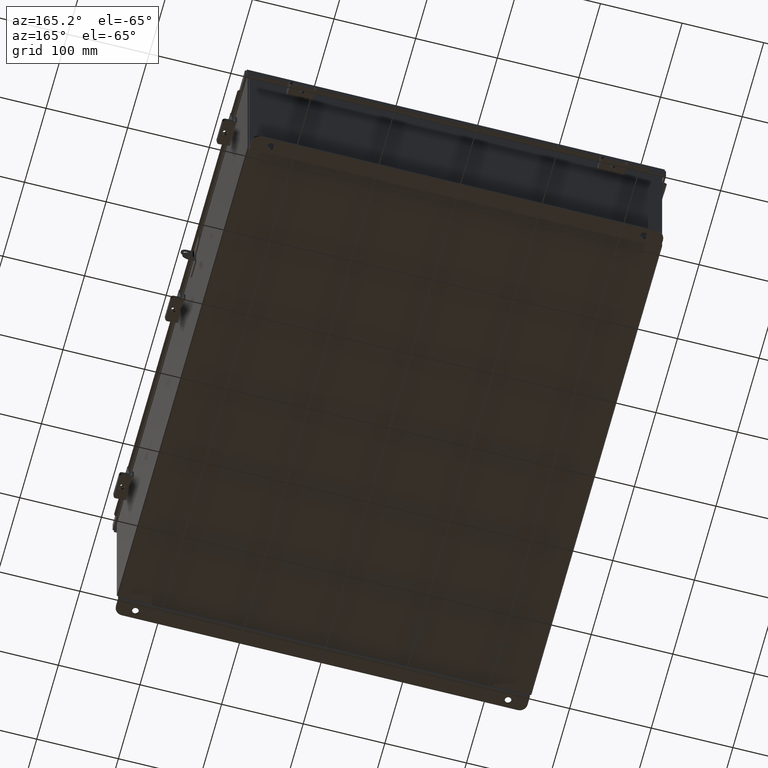
[diagram: clean part render]
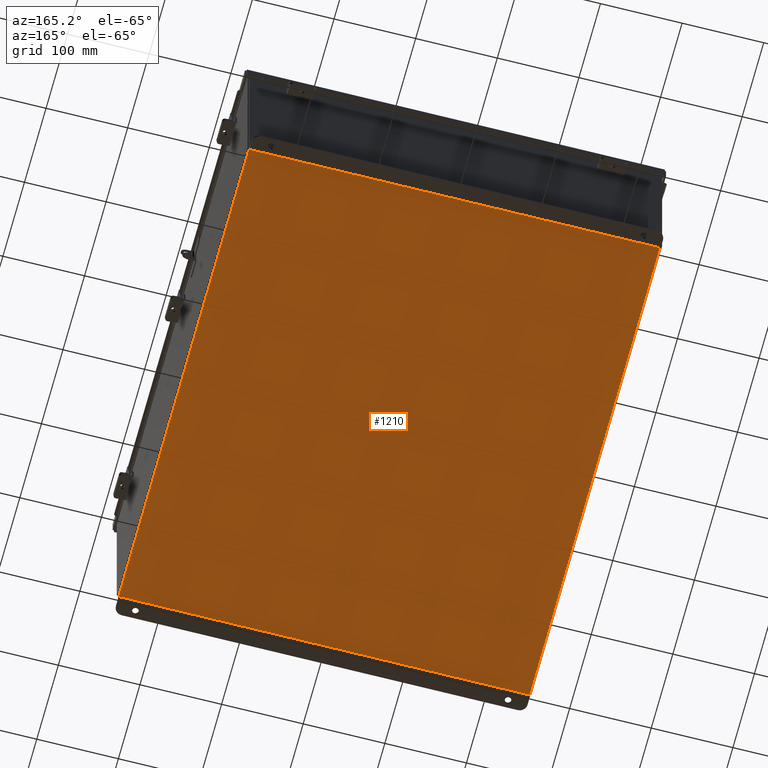
[diagram: same view with one face highlighted and labeled with its STEP entity id]
A machine part, auxiliary view. The second image highlights one B-rep face of the part: STEP entity #1210.
In plain terms, the highlighted planar face has unit normal (0, 0, -1).
Its self-contained STEP definition (entity closure, byte-faithful):
#384 = PLANE ( 'NONE',  #1244 ) ;
#886 = CARTESIAN_POINT ( 'NONE',  ( 9.912300000000000100, 11.92529999999999300, -0.07469999999999994700 ) ) ;
#960 = EDGE_CURVE ( 'NONE', #11804, #16756, #5297, .T. ) ;
#973 = EDGE_CURVE ( 'NONE', #8088, #16756, #5128, .T. ) ;
#1210 = ADVANCED_FACE ( 'NONE', ( #4415 ), #384, .T. ) ;
#1244 = AXIS2_PLACEMENT_3D ( 'NONE', #17274, #21716, #16849 ) ;
#1491 = CARTESIAN_POINT ( 'NONE',  ( -9.912300000000000100, 11.92529999999999600, -0.07470000000000000300 ) ) ;
#3760 = ORIENTED_EDGE ( 'NONE', *, *, #12338, .T. ) ;
#3862 = VECTOR ( 'NONE', #17015, 39.37007874015748100 ) ;
#3907 = LINE ( 'NONE', #17301, #3862 ) ;
#4415 = FACE_OUTER_BOUND ( 'NONE', #21895, .T. ) ;
#4618 = DIRECTION ( 'NONE',  ( -0.0000000000000000000, 1.000000000000000000, -0.0000000000000000000 ) ) ;
#5108 = CARTESIAN_POINT ( 'NONE',  ( -9.912300000000000100, -11.92530000000000000, -0.07469999999999994700 ) ) ;
#5128 = LINE ( 'NONE', #15664, #5187 ) ;
#5187 = VECTOR ( 'NONE', #18452, 39.37007874015748100 ) ;
#5244 = VECTOR ( 'NONE', #7387, 39.37007874015748100 ) ;
#5297 = LINE ( 'NONE', #9541, #5244 ) ;
#7245 = ORIENTED_EDGE ( 'NONE', *, *, #10076, .F. ) ;
#7387 = DIRECTION ( 'NONE',  ( -0.0000000000000000000, -1.000000000000000000, -0.0000000000000000000 ) ) ;
#8088 = VERTEX_POINT ( 'NONE', #9273 ) ;
#9273 = CARTESIAN_POINT ( 'NONE',  ( -9.912300000000000100, -11.92529999999999600, -0.07469999999999994700 ) ) ;
#9541 = CARTESIAN_POINT ( 'NONE',  ( 9.912300000000000100, 11.92529999999999600, -0.07469999999999994700 ) ) ;
#10076 = EDGE_CURVE ( 'NONE', #11804, #17383, #3907, .T. ) ;
#11166 = CARTESIAN_POINT ( 'NONE',  ( 9.912300000000000100, -11.92530000000000000, -0.07470000000000000300 ) ) ;
#11804 = VERTEX_POINT ( 'NONE', #886 ) ;
#12338 = EDGE_CURVE ( 'NONE', #8088, #17383, #13490, .T. ) ;
#13285 = VECTOR ( 'NONE', #4618, 39.37007874015748100 ) ;
#13490 = LINE ( 'NONE', #5108, #13285 ) ;
#15011 = ORIENTED_EDGE ( 'NONE', *, *, #973, .F. ) ;
#15664 = CARTESIAN_POINT ( 'NONE',  ( -10.00000000000000000, -11.92530000000000000, -0.07470000000000000300 ) ) ;
#16756 = VERTEX_POINT ( 'NONE', #11166 ) ;
#16849 = DIRECTION ( 'NONE',  ( -1.000000000000000000, 0.0000000000000000000, -0.0000000000000000000 ) ) ;
#17015 = DIRECTION ( 'NONE',  ( -1.000000000000000000, -0.0000000000000000000, -0.0000000000000000000 ) ) ;
#17274 = CARTESIAN_POINT ( 'NONE',  ( 0.0000000000000000000, 0.0000000000000000000, -0.07470000000000000300 ) ) ;
#17301 = CARTESIAN_POINT ( 'NONE',  ( -10.00000000000000000, 11.92529999999999600, -0.07470000000000000300 ) ) ;
#17383 = VERTEX_POINT ( 'NONE', #1491 ) ;
#18452 = DIRECTION ( 'NONE',  ( 1.000000000000000000, 0.0000000000000000000, 0.0000000000000000000 ) ) ;
#21716 = DIRECTION ( 'NONE',  ( 0.0000000000000000000, 0.0000000000000000000, -1.000000000000000000 ) ) ;
#21895 = EDGE_LOOP ( 'NONE', ( #7245, #22597, #15011, #3760 ) ) ;
#22597 = ORIENTED_EDGE ( 'NONE', *, *, #960, .T. ) ;